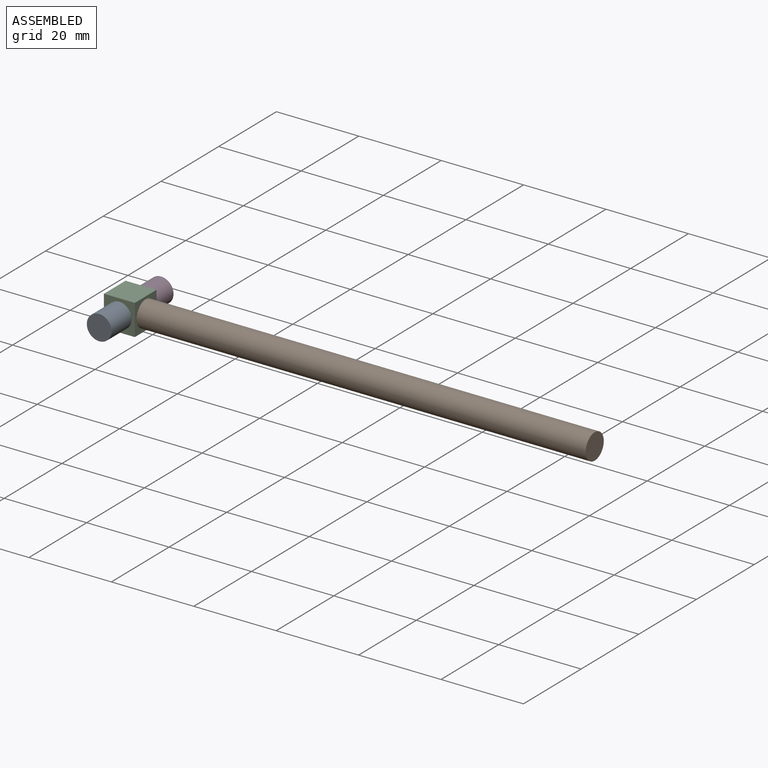
[diagram: assembled view]
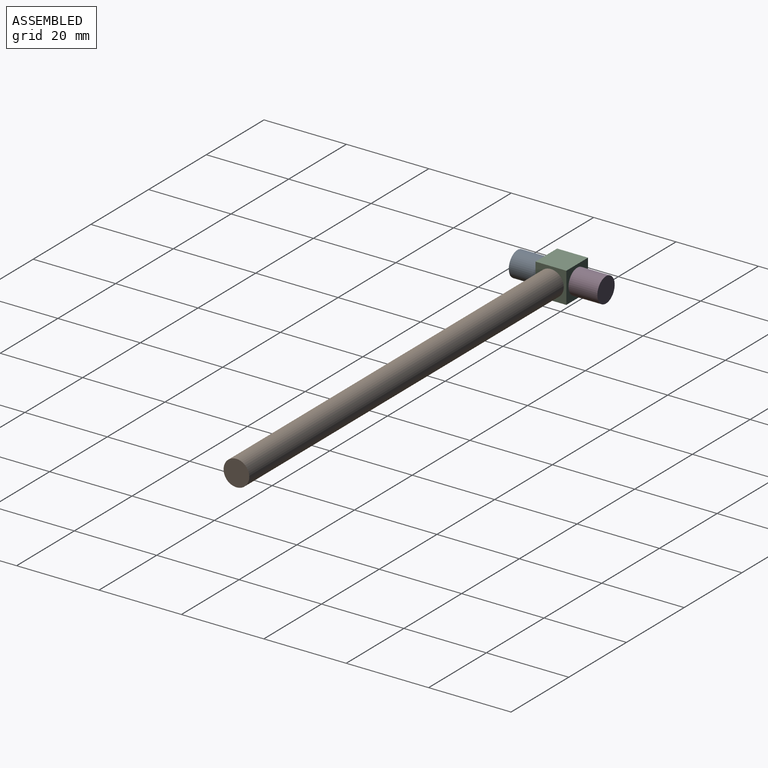
[diagram: assembled view, second angle]
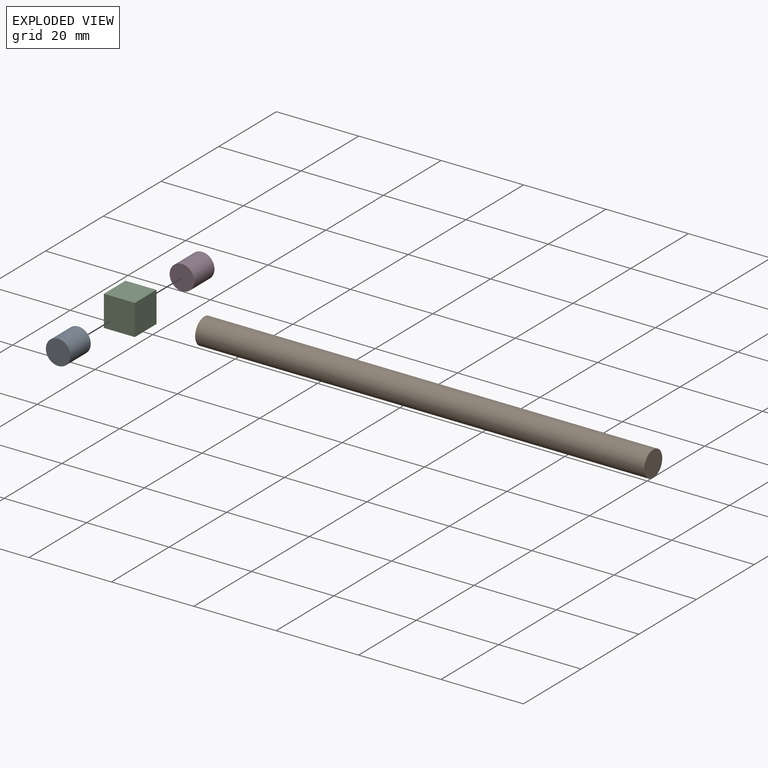
[diagram: exploded view]
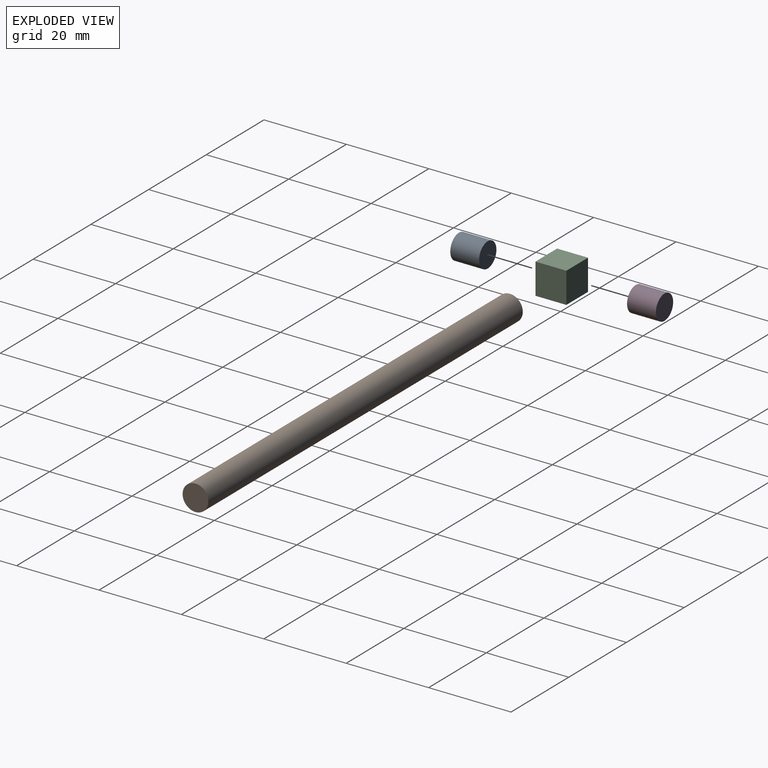
[diagram: exploded view, second angle]
ASSEMBLY  parts=4 mates=3
PART A: 3 faces, bbox 6x7x6 mm
  f0: cylinder r=3mm len=7mm, axis (0,1,0), area 131.9mm2, adj f1,f2
  f1: plane 6x6mm, normal (0,-1,0), area 28.3mm2, adj f0
  f2: plane 6x6mm, normal (0,1,0), area 28.3mm2, adj f0
PART B: 3 faces, bbox 6.3x109x6.3 mm
  f0: cylinder r=3.12mm len=109mm, axis (0,1,0), area 2140.2mm2, adj f1,f2
  f1: plane 6.25x6.25mm, normal (0,-1,0), area 30.7mm2, adj f0
  f2: plane 6.25x6.25mm, normal (0,1,0), area 30.7mm2, adj f0
PART C: 6 faces, bbox 7.5x7.5x7.5 mm
  f0: plane 7.5x7.5mm, normal (1,0,0), area 56.2mm2, adj f1,f3,f4,f5
  f1: plane 7.5x7.5mm, normal (0,0,1), area 56.2mm2, adj f0,f2,f4,f5
  f2: plane 7.5x7.5mm, normal (-1,0,0), area 56.2mm2, adj f1,f3,f4,f5
  f3: plane 7.5x7.5mm, normal (0,0,-1), area 56.2mm2, adj f0,f2,f4,f5
  f4: plane 7.5x7.5mm, normal (0,-1,0), area 56.2mm2, adj f0,f1,f2,f3
  f5: plane 7.5x7.5mm, normal (0,1,0), area 56.2mm2, adj f0,f1,f2,f3
PART D: same geometry as A
PLACE A t=(-3.79,-6.13,-0.28)mm
PLACE B rot(axis=(0.58,0.58,-0.58),120deg) t=(108.96,-2.38,-0.28)mm
PLACE C t=(-3.79,1.37,-0.28)mm fixed
PLACE D t=(-3.79,8.37,-0.28)mm
MATE fastened B.f0 <-> C.f0  axis (-1,0,0) through (-0.04,-2.38,-0.28)mm
MATE fastened D.f0 <-> C.f5  axis (0,-1,0) through (-3.79,1.37,-0.28)mm
MATE fastened A.f0 <-> C.f4  axis (0,1,0) through (-3.79,-6.13,-0.28)mm
